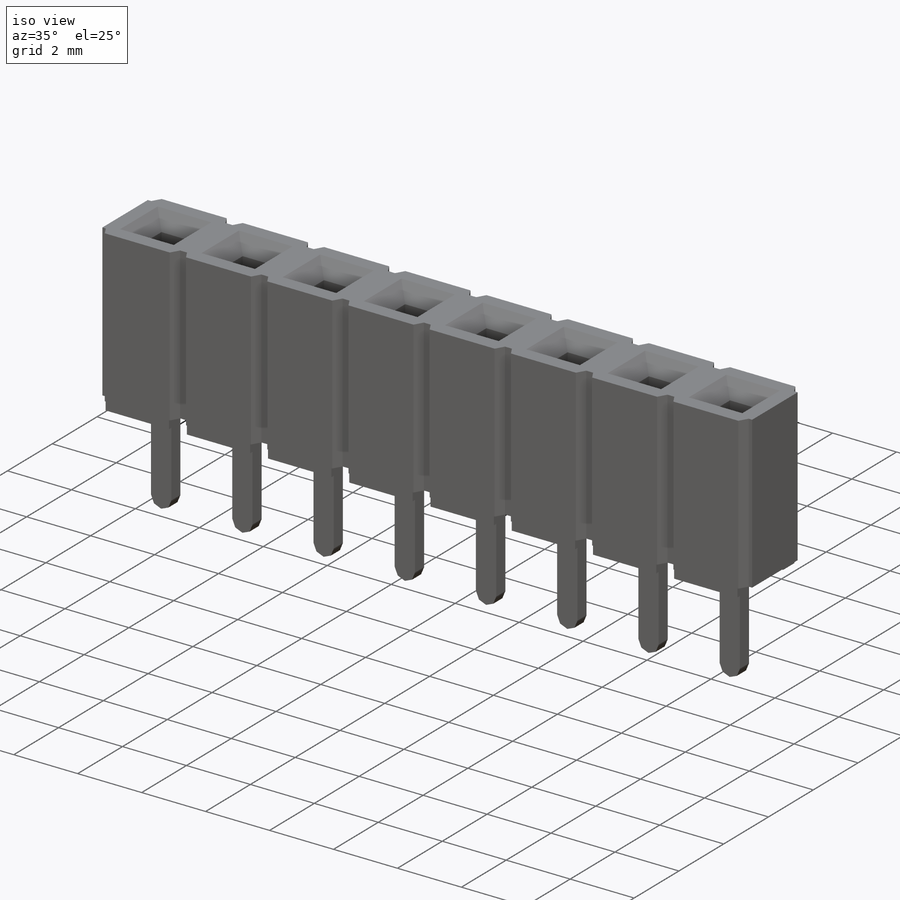
[diagram: iso view]
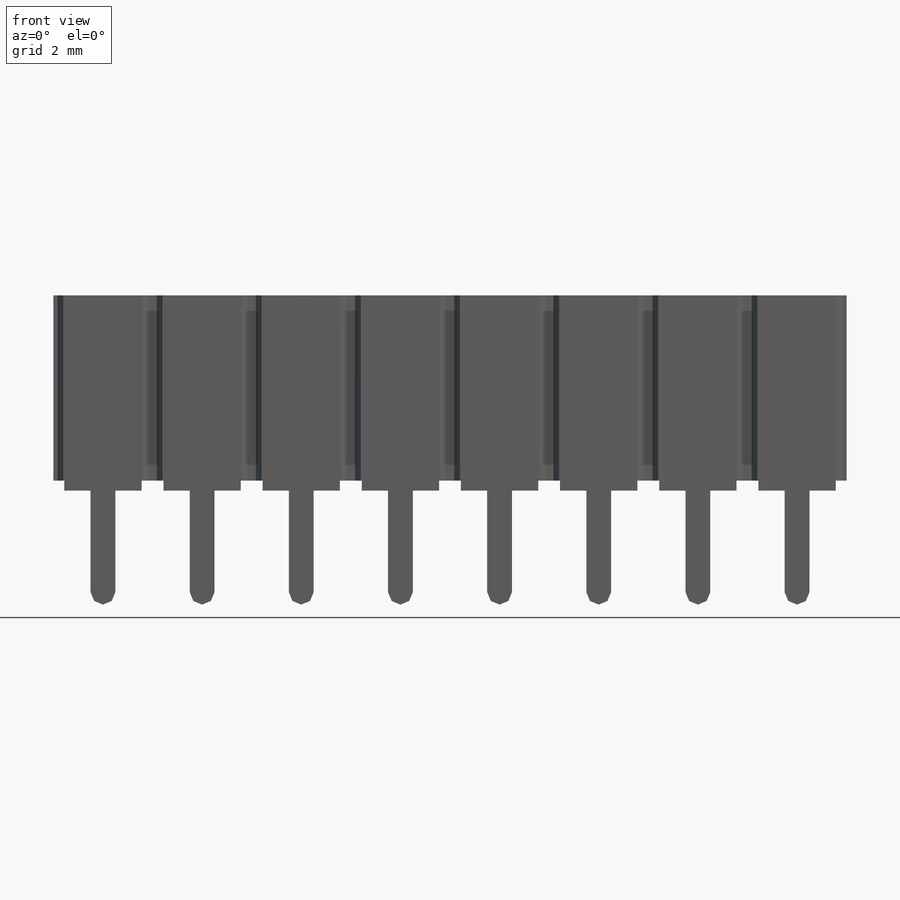
[diagram: front view]
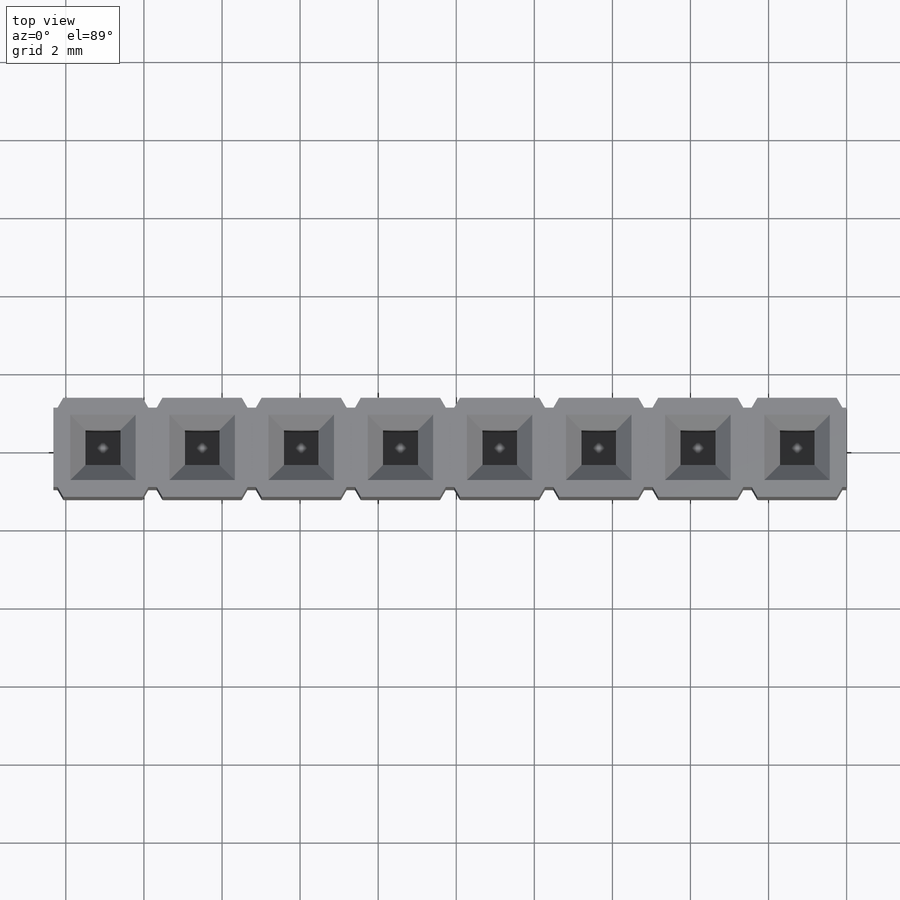
[diagram: top view]
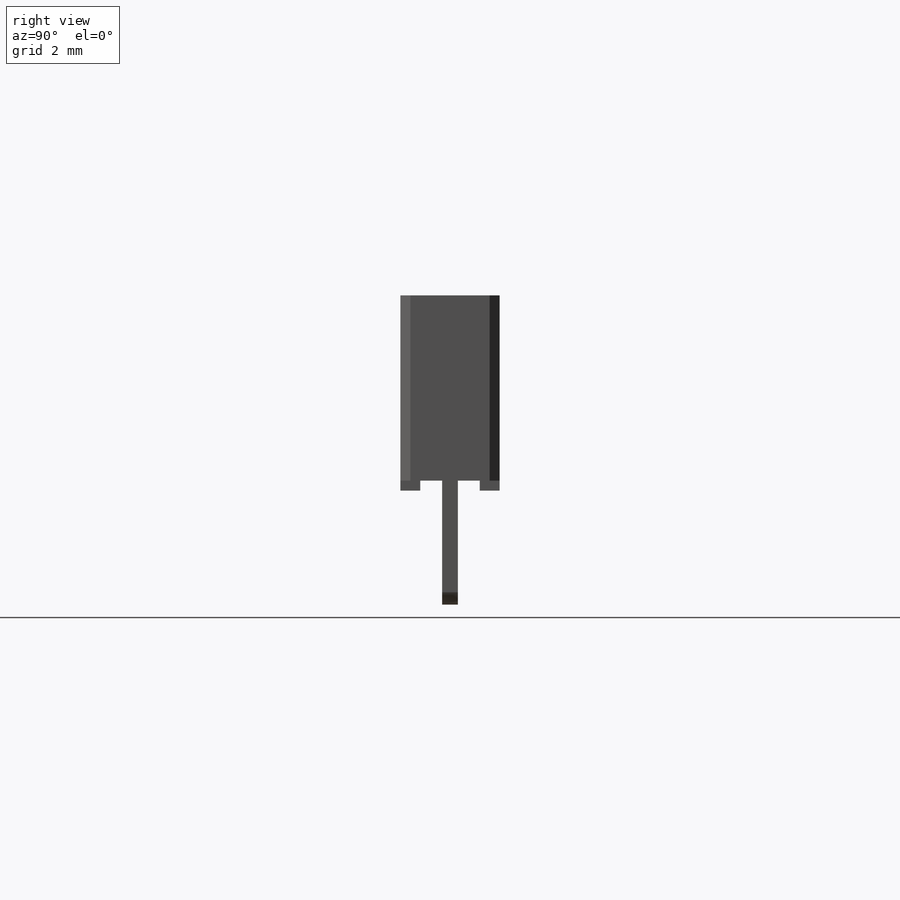
[diagram: right view]
SOLIDWORKS PART (.sldprt)
format: sldprt  version: not decoded by parser v0  size: 684,544 bytes
history: native  units: mm
features: sketch x7, cut_extrude x5, pattern_linear x3, extrude x2, material x1, plane x1, chamfer x1, fillet x1 + 1 further entry (+14 scaffold rows collapsed)
feature tree (36):
  scaffold x14  (default folders/planes/origin — collapsed)
  material  "Material <not specified>"
  plane  "Side"
  "Design Table"
  sketch  "Sketch1"  dims[D1=2.54mm D2=40.64mm]
  extrude  "Base-Extrude"  Depth=5mm
  sketch  "Sketch2"  dims[D1=0.508mm D2=0.508mm D3=0.254mm]
  cut_extrude  "Standoff - Width"  [1 undecoded]
  sketch  "Sketch5"
  cut_extrude  "Position Cut"  [1 undecoded]
  sketch  "Sketch4"  dims[c1.D1=0.508mm c1.D2=0.254mm c1.D3=~0.318548mm c2.D3=60.0deg c2.D1=0.254mm c2.D2=~0.293294mm c3.D2=30.0deg c3.D3=0.254mm c3.D4=1.27mm c3.D1=1.27mm c4.D2=1.27mm c4.D3=0.889mm c4.D4=0.889mm c4.D1=1.27mm]
  cut_extrude  "Upper Core"  Depth=3.3528mm
  chamfer  "Lead-in"  Distance=0.3937mm Angle=50deg
  pattern_linear  "Core Pattern"  Count1=16 Count2=1 Spacing1=2.54mm Spacing2=2.54mm
  sketch  "Sketch10"  dims[D1=1.9812mm D2=2.54mm]
  cut_extrude  "Standoff - Length"  [1 undecoded]
  pattern_linear  "Standoff Pattern"  Count1=16 Count2=1 Spacing1=2.54mm Spacing2=2.54mm
  sketch  "Sketch11"  dims[D1=0.635mm D2=0.4064mm]
  extrude  "Tail"  Depth=3.175mm
  fillet  "Tail Fillets"  Radius=0.3175mm
  pattern_linear  "Tail Pattern"  Count1=16 Count2=1 Spacing1=2.54mm Spacing2=2.54mm
  sketch  "Sketch12"
  cut_extrude  "Cut-Extrude1"  [1 undecoded]
decode coverage: 13 of 19 modeling features carry decoded parameters; 1 rows unclassified (native names shown)
note: ~ marks probable driven/reference dimensions
note: 4 parameter values undecoded
summary: no parameter record found for 4 features
note: suppression state not decoded; provenance and decode notes live in map.json
